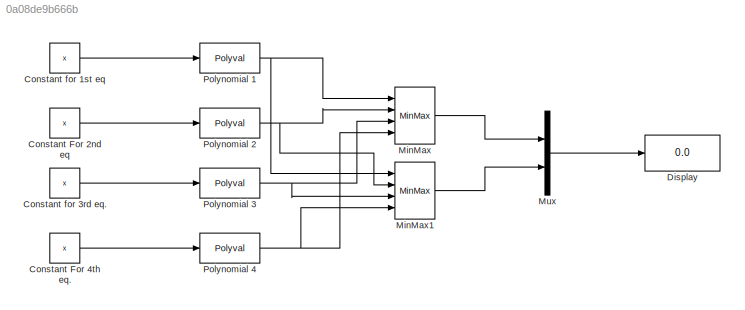
MODEL slx_0a08de9b666b
KIND model
CONFIG AbsTol = auto
CONFIG FixedStep = auto
CONFIG MaxStep = auto
CONFIG MinStep = auto
CONFIG RelTol = 1e-3
CONFIG SampleTimeConstraint = Unconstrained
CONFIG Solver = ode45
CONFIG SolverMode = Auto
CONFIG SolverName = ode45
CONFIG StartTime = 0.0
CONFIG StopTime = 10.0
BLOCK [Constant] Constant For 2nd eq
  Value = x
BLOCK [Constant] Constant For 4th eq.
  Value = x
BLOCK [Constant] Constant for 1st eq
  Value = x
BLOCK [Constant] Constant for 3rd eq.
  Value = x
BLOCK [Display] Display
  Decimation = 1
  Ports = [1]
BLOCK [MinMax] MinMax
  InputSameDT = off
  Inputs = 4
  Ports = [4, 1]
  SaturateOnIntegerOverflow = off
BLOCK [MinMax] MinMax1
  Function = max
  InputSameDT = off
  Inputs = 4
  Ports = [4, 1]
  SaturateOnIntegerOverflow = off
BLOCK [Mux] Mux
  DisplayOption = bar
  Inputs = 2
  Ports = [2, 1]
BLOCK [Polyval] Polynomial 1
  Coefs = [ 1 0 4 2 7 1 ]
BLOCK [Polyval] Polynomial 2
  Coefs = [ 4 2 0 0 0]
BLOCK [Polyval] Polynomial 3
  Coefs = [2 4 6 0 7 1]
BLOCK [Polyval] Polynomial 4
  Coefs = [ 9 0 2 0 0]
LINE Constant For 2nd eq:1 -> Polynomial 2:1
LINE Constant For 4th eq.:1 -> Polynomial 4:1
LINE Constant for 1st eq:1 -> Polynomial 1:1
LINE Constant for 3rd eq.:1 -> Polynomial 3:1
LINE MinMax1:1 -> Mux:2
LINE MinMax:1 -> Mux:1
LINE Mux:1 -> Display:1
NET Polynomial 1:1 -> MinMax1:1, MinMax:1
NET Polynomial 2:1 -> MinMax1:2, MinMax:2
NET Polynomial 3:1 -> MinMax1:3, MinMax:3
NET Polynomial 4:1 -> MinMax1:4, MinMax:4
note: NET lines group one-source signal fan-out (src -> all destinations, sorted); 1:1 wires keep LINE
